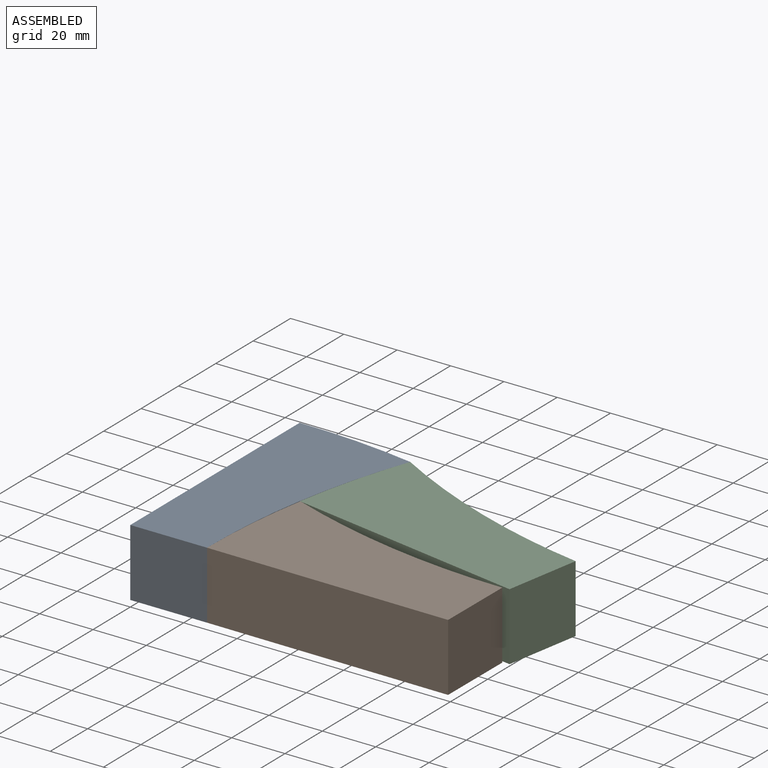
[diagram: assembled view]
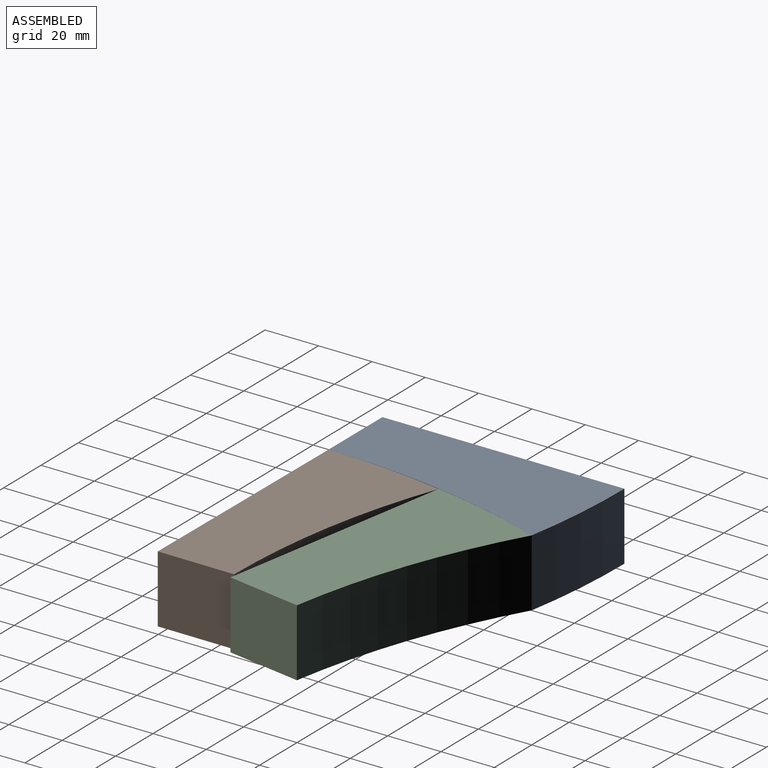
[diagram: assembled view, second angle]
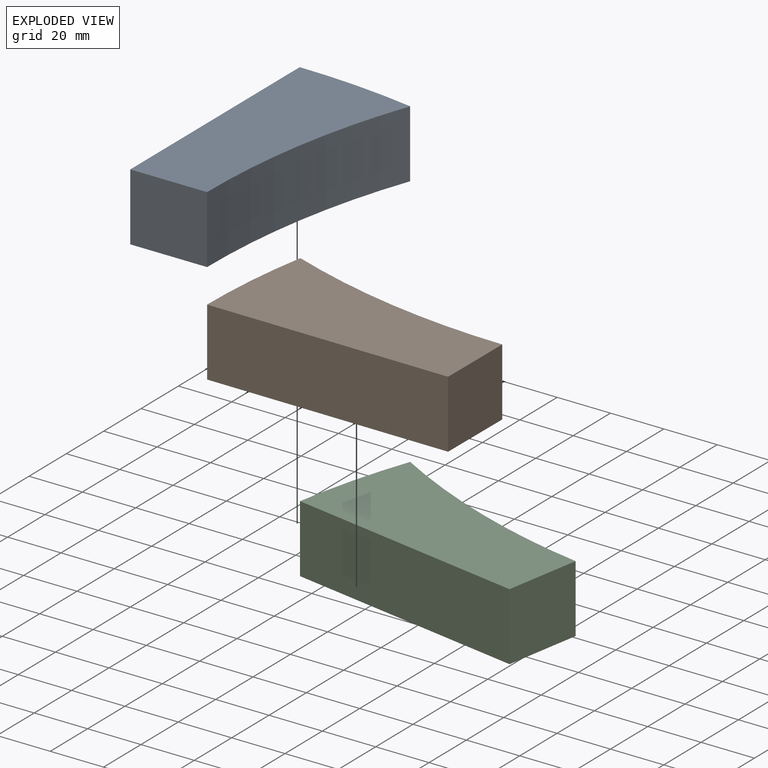
[diagram: exploded view]
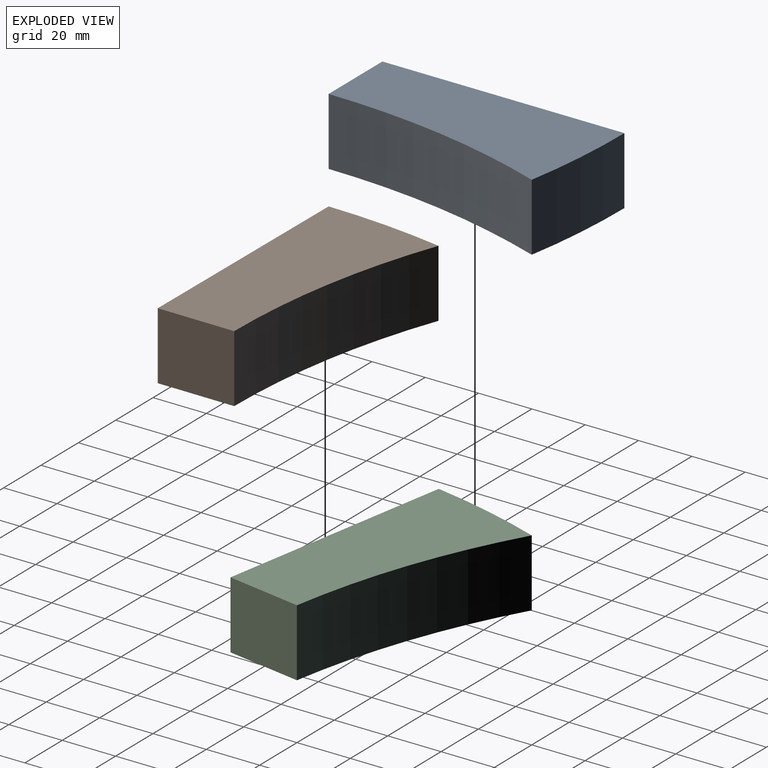
[diagram: exploded view, second angle]
ASSEMBLY  parts=3 mates=2
PART A: 6 faces, bbox 44.1x90.7x25.4 mm
  f0: cylinder r=254mm len=86.87mm, axis (0,0,-1), area 2252mm2, adj f1,f3,f4,f5
  f1: cylinder r=254mm len=44.11mm, axis (0,0,-1), area 1126mm2, adj f0,f2,f4,f5
  f2: plane 90.73x25.4mm, normal (-1,0,0), area 2304.6mm2, adj f1,f3,f4,f5
  f3: plane 28.79x25.4mm, normal (0,-1,0), area 731.2mm2, adj f0,f2,f4,f5
  f4: plane 90.73x44.11mm, normal (0,0,1), area 3052.7mm2, adj f0,f1,f2,f3
  f5: plane 90.73x44.11mm, normal (0,0,-1), area 3052.7mm2, adj f0,f1,f2,f3
PART B: same geometry as A
PART C: same geometry as A
PLACE A at identity
PLACE B rot(axis=(0,0,1),89.7deg) t=(119.52,-0.54,0)mm
PLACE C rot(axis=(0,0,1),80.2deg) t=(122.17,28.57,0)mm
MATE revolute A.f4 <-> C.f4  axis (0,0,1) through (44.11,86.87,25.4)mm
MATE revolute A.f4 <-> B.f4  axis (0,0,1) through (28.79,0,25.4)mm
